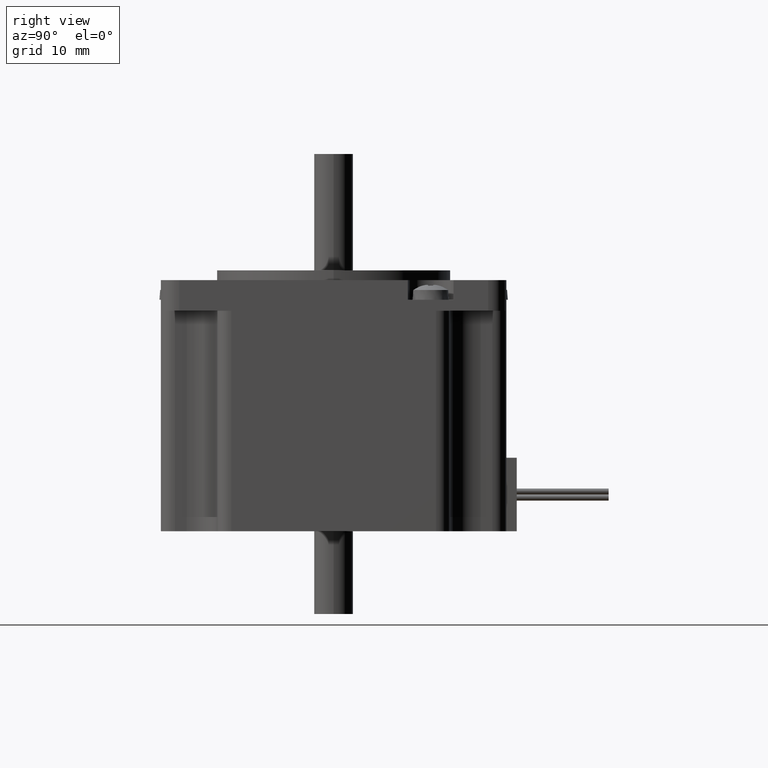
[diagram: clean part render]
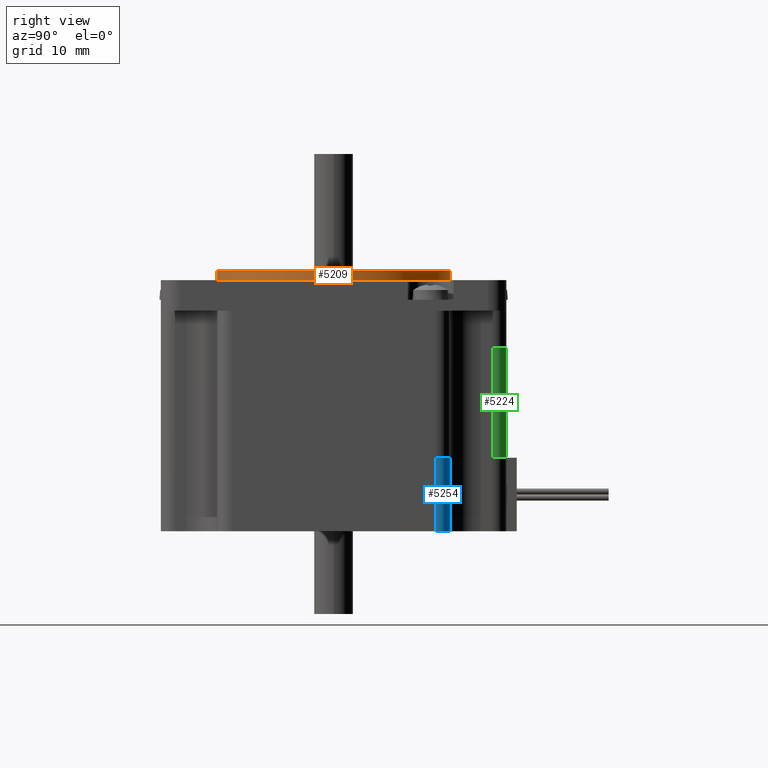
[diagram: same view with three faces highlighted in distinct colors, each labeled with its STEP entity id]
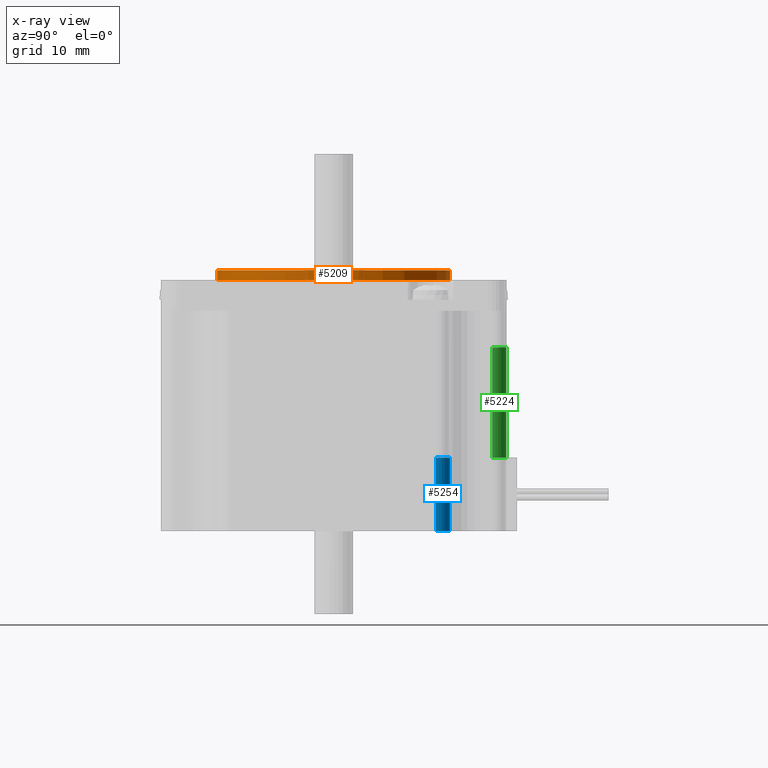
[diagram: x-ray of the same camera — body ghosted, the three highlighted faces saturated]
A machine part, right view with three faces highlighted in distinct colors.
The next image is the same camera in x-ray (body ghosted, the three faces saturated) — at least one of them is partly hidden behind the body in this view.
Their STEP definitions:

[orange] entity #5209 — the highlighted cylindrical surface (bore or boss wall) has radius 19.05 mm, axis along (0, 0, 1).
#1094=FACE_BOUND('',#1545,.T.);
#1197=FACE_OUTER_BOUND('',#1544,.T.);
#1544=EDGE_LOOP('',(#3723));
#1545=EDGE_LOOP('',(#3724));
#1872=CIRCLE('',#5531,19.05);
#1906=CIRCLE('',#5606,19.05);
#2201=VERTEX_POINT('',#7903);
#2266=VERTEX_POINT('',#8110);
#2721=EDGE_CURVE('',#2201,#2201,#1872,.T.);
#2822=EDGE_CURVE('',#2266,#2266,#1906,.T.);
#3723=ORIENTED_EDGE('',*,*,#2822,.T.);
#3724=ORIENTED_EDGE('',*,*,#2721,.F.);
#4957=CYLINDRICAL_SURFACE('',#5605,19.05);
#5209=ADVANCED_FACE('',(#1197,#1094),#4957,.T.);
#5531=AXIS2_PLACEMENT_3D('',#7904,#6255,#6256);
#5605=AXIS2_PLACEMENT_3D('',#8109,#6470,#6471);
#5606=AXIS2_PLACEMENT_3D('',#8111,#6472,#6473);
#6255=DIRECTION('center_axis',(0.,0.,-1.));
#6256=DIRECTION('ref_axis',(-1.,0.,0.));
#6470=DIRECTION('center_axis',(0.,0.,1.));
#6471=DIRECTION('ref_axis',(-1.,0.,0.));
#6472=DIRECTION('center_axis',(0.,0.,-1.));
#6473=DIRECTION('ref_axis',(-1.,0.,0.));
#7903=CARTESIAN_POINT('',(19.05,4.55339820162602E-15,4.7000000050664));
#7904=CARTESIAN_POINT('Origin',(-2.22044604925031E-15,2.22044604925031E-15,
4.7000000050664));
#8109=CARTESIAN_POINT('Origin',(-2.22044604925031E-15,2.22044604925031E-15,
4.7000000050664));
#8110=CARTESIAN_POINT('',(19.05,4.55339820162602E-15,6.3000000050664));
#8111=CARTESIAN_POINT('Origin',(-2.22044604925031E-15,2.22044604925031E-15,
6.3000000050664));

[blue] entity #5254 — the highlighted cylindrical surface (edge-blend (fillet) strip) has radius 2.3 mm, axis along (-0, -0, 1).
#361=LINE('',#8384,#727);
#363=LINE('',#8389,#729);
#727=VECTOR('',#6740,10.);
#729=VECTOR('',#6746,10.);
#1242=FACE_OUTER_BOUND('',#1595,.T.);
#1595=EDGE_LOOP('',(#3966,#3967,#3968,#3969));
#1940=CIRCLE('',#5674,2.3);
#1954=CIRCLE('',#5699,2.3);
#2337=VERTEX_POINT('',#8311);
#2338=VERTEX_POINT('',#8313);
#2363=VERTEX_POINT('',#8383);
#2364=VERTEX_POINT('',#8387);
#2919=EDGE_CURVE('',#2338,#2337,#1940,.T.);
#2954=EDGE_CURVE('',#2363,#2338,#361,.T.);
#2956=EDGE_CURVE('',#2364,#2363,#1954,.T.);
#2957=EDGE_CURVE('',#2337,#2364,#363,.T.);
#3966=ORIENTED_EDGE('',*,*,#2956,.T.);
#3967=ORIENTED_EDGE('',*,*,#2954,.T.);
#3968=ORIENTED_EDGE('',*,*,#2919,.T.);
#3969=ORIENTED_EDGE('',*,*,#2957,.T.);
#4977=CYLINDRICAL_SURFACE('',#5698,2.3);
#5254=ADVANCED_FACE('',(#1242),#4977,.T.);
#5674=AXIS2_PLACEMENT_3D('',#8314,#6671,#6672);
#5698=AXIS2_PLACEMENT_3D('',#8386,#6742,#6743);
#5699=AXIS2_PLACEMENT_3D('',#8388,#6744,#6745);
#6671=DIRECTION('center_axis',(-1.5415812001839E-16,-2.63585540312802E-17,
1.));
#6672=DIRECTION('ref_axis',(0.707106781186549,0.707106781186546,1.27644564337763E-16));
#6740=DIRECTION('',(1.5415812001839E-16,2.63585540312802E-17,-1.));
#6742=DIRECTION('center_axis',(-1.5415812001839E-16,-2.63585540312802E-17,
1.));
#6743=DIRECTION('ref_axis',(0.707106781186549,0.707106781186546,1.27644564337763E-16));
#6744=DIRECTION('center_axis',(1.5415812001839E-16,2.63585540312802E-17,
-1.));
#6745=DIRECTION('ref_axis',(0.707106781186549,0.707106781186546,1.27644564337763E-16));
#6746=DIRECTION('',(-1.5415812001839E-16,-2.63585540312802E-17,1.));
#8311=CARTESIAN_POINT('',(25.9,19.,-36.2999999949336));
#8313=CARTESIAN_POINT('',(28.2,16.7,-36.2999999949336));
#8314=CARTESIAN_POINT('Origin',(25.9,16.7,-36.2999999949336));
#8383=CARTESIAN_POINT('',(28.2,16.7,-24.2999999949336));
#8384=CARTESIAN_POINT('',(28.2,16.7,-30.2999999949336));
#8386=CARTESIAN_POINT('Origin',(25.9,16.7,-30.2999999949336));
#8387=CARTESIAN_POINT('',(25.9,19.,-24.2999999949336));
#8388=CARTESIAN_POINT('Origin',(25.9,16.7,-24.2999999949336));
#8389=CARTESIAN_POINT('',(25.9,19.,-30.2999999949336));

[green] entity #5224 — the highlighted cylindrical surface (edge-blend (fillet) strip) has radius 2.3 mm, axis along (0, 0, -1).
#304=LINE('',#8210,#670);
#305=LINE('',#8213,#671);
#670=VECTOR('',#6567,10.);
#671=VECTOR('',#6570,10.);
#1212=FACE_OUTER_BOUND('',#1562,.T.);
#1562=EDGE_LOOP('',(#3799,#3800,#3801,#3802));
#1913=CIRCLE('',#5621,2.3);
#1925=CIRCLE('',#5640,2.3);
#2279=VERTEX_POINT('',#8145);
#2280=VERTEX_POINT('',#8147);
#2304=VERTEX_POINT('',#8209);
#2305=VERTEX_POINT('',#8211);
#2837=EDGE_CURVE('',#2280,#2279,#1913,.T.);
#2868=EDGE_CURVE('',#2279,#2304,#304,.T.);
#2869=EDGE_CURVE('',#2304,#2305,#1925,.T.);
#2870=EDGE_CURVE('',#2305,#2280,#305,.T.);
#3799=ORIENTED_EDGE('',*,*,#2837,.T.);
#3800=ORIENTED_EDGE('',*,*,#2868,.T.);
#3801=ORIENTED_EDGE('',*,*,#2869,.T.);
#3802=ORIENTED_EDGE('',*,*,#2870,.T.);
#4963=CYLINDRICAL_SURFACE('',#5639,2.3);
#5224=ADVANCED_FACE('',(#1212),#4963,.T.);
#5621=AXIS2_PLACEMENT_3D('',#8148,#6510,#6511);
#5639=AXIS2_PLACEMENT_3D('',#8208,#6565,#6566);
#5640=AXIS2_PLACEMENT_3D('',#8212,#6568,#6569);
#6510=DIRECTION('center_axis',(0.,0.,1.));
#6511=DIRECTION('ref_axis',(0.707106781186548,0.707106781186547,0.));
#6565=DIRECTION('center_axis',(0.,0.,-1.));
#6566=DIRECTION('ref_axis',(0.707106781186548,0.707106781186547,0.));
#6567=DIRECTION('',(0.,0.,1.));
#6568=DIRECTION('center_axis',(0.,0.,-1.));
#6569=DIRECTION('ref_axis',(0.707106781186548,0.707106781186547,0.));
#6570=DIRECTION('',(0.,0.,-1.));
#8145=CARTESIAN_POINT('',(16.7,28.2,-24.2999999949336));
#8147=CARTESIAN_POINT('',(19.,25.9,-24.2999999949336));
#8148=CARTESIAN_POINT('Origin',(16.7,25.9,-24.2999999949336));
#8208=CARTESIAN_POINT('Origin',(16.7,25.9,-15.2999999949336));
#8209=CARTESIAN_POINT('',(16.7,28.2,-6.29999999493361));
#8210=CARTESIAN_POINT('',(16.7,28.2,-15.2999999949336));
#8211=CARTESIAN_POINT('',(19.,25.9,-6.29999999493361));
#8212=CARTESIAN_POINT('Origin',(16.7,25.9,-6.29999999493361));
#8213=CARTESIAN_POINT('',(19.,25.9,-15.2999999949336));